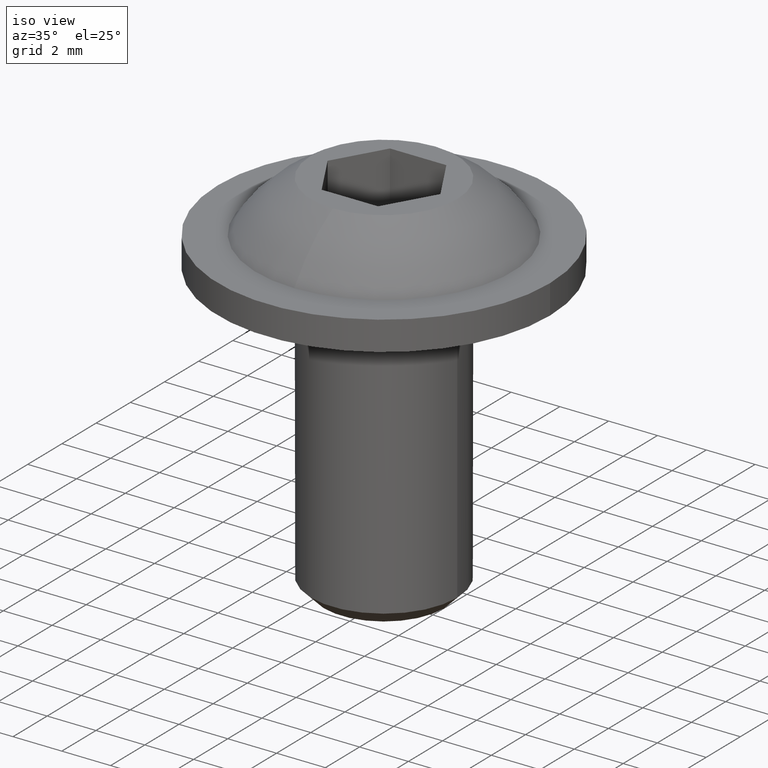
[diagram: clean part render]
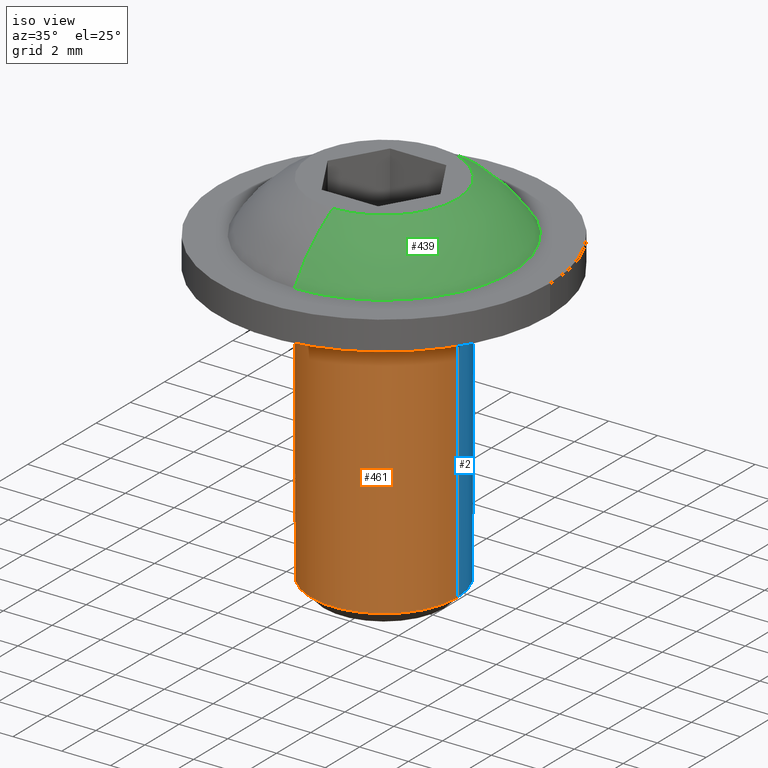
[diagram: same view with three faces highlighted in distinct colors, each labeled with its STEP entity id]
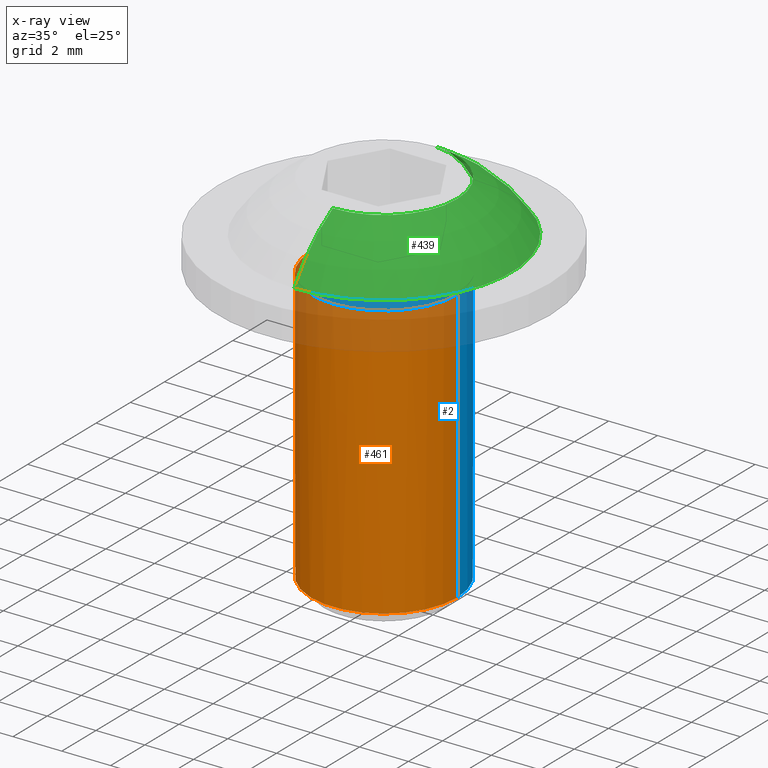
[diagram: x-ray of the same camera — body ghosted, the three highlighted faces saturated]
A machine part, iso view with three faces highlighted in distinct colors.
The next image is the same camera in x-ray (body ghosted, the three faces saturated) — at least one of them is partly hidden behind the body in this view.
Their STEP definitions:

[orange] entity #461 — the highlighted cylindrical surface (partial cylindrical patch) has radius 3 mm, axis along (-0, -0, -1).
#4 = ORIENTED_EDGE ( 'NONE', *, *, #588, .T. ) ;
#16 = AXIS2_PLACEMENT_3D ( 'NONE', #674, #540, #85 ) ;
#41 = CARTESIAN_POINT ( 'NONE',  ( -2.544353616684700200E-015, -2.544353616684700200E-015, -11.45875000000000000 ) ) ;
#69 = CARTESIAN_POINT ( 'NONE',  ( -3.000000000000001300, -1.299932383957980000E-015, -5.854374999999999200 ) ) ;
#74 = DIRECTION ( 'NONE',  ( -2.220446049250310100E-016, -2.220446049250310100E-016, -1.000000000000000000 ) ) ;
#78 = FACE_OUTER_BOUND ( 'NONE', #93, .T. ) ;
#85 = DIRECTION ( 'NONE',  ( -1.000000000000000000, 0.0000000000000000000, 2.891205793294678300E-016 ) ) ;
#93 = EDGE_LOOP ( 'NONE', ( #163, #681, #361, #438, #4 ) ) ;
#151 = DIRECTION ( 'NONE',  ( -1.000000000000000000, 0.0000000000000000000, 2.168404344971008900E-016 ) ) ;
#163 = ORIENTED_EDGE ( 'NONE', *, *, #721, .F. ) ;
#211 = LINE ( 'NONE', #69, #598 ) ;
#242 = CARTESIAN_POINT ( 'NONE',  ( -5.551115123125941700E-017, -5.551115123125941700E-017, -0.2500000000000002200 ) ) ;
#247 = VERTEX_POINT ( 'NONE', #389 ) ;
#250 = DIRECTION ( 'NONE',  ( -2.220446049250310100E-016, -2.220446049250310100E-016, -1.000000000000000000 ) ) ;
#268 = AXIS2_PLACEMENT_3D ( 'NONE', #354, #822, #151 ) ;
#307 = LINE ( 'NONE', #852, #507 ) ;
#332 = EDGE_CURVE ( 'NONE', #539, #672, #362, .T. ) ;
#334 = AXIS2_PLACEMENT_3D ( 'NONE', #41, #769, #630 ) ;
#335 = VERTEX_POINT ( 'NONE', #381 ) ;
#354 = CARTESIAN_POINT ( 'NONE',  ( -5.551115123125941700E-017, -5.551115123125941700E-017, -0.2500000000000002200 ) ) ;
#361 = ORIENTED_EDGE ( 'NONE', *, *, #332, .T. ) ;
#362 = CIRCLE ( 'NONE', #749, 3.000000000000000000 ) ;
#381 = CARTESIAN_POINT ( 'NONE',  ( -3.000000000017062800, -2.176959576943944400E-015, -11.45875000000000000 ) ) ;
#385 = CARTESIAN_POINT ( 'NONE',  ( 3.000000000000000000, 3.118828885129464800E-016, -0.2500000000000011100 ) ) ;
#389 = CARTESIAN_POINT ( 'NONE',  ( 3.000000000017055700, -2.544353616690240400E-015, -11.45875000000000000 ) ) ;
#423 = CYLINDRICAL_SURFACE ( 'NONE', #16, 3.000000000000000000 ) ;
#438 = ORIENTED_EDGE ( 'NONE', *, *, #782, .T. ) ;
#452 = DIRECTION ( 'NONE',  ( -2.220446049250310100E-016, -2.220446049250310100E-016, -1.000000000000000000 ) ) ;
#461 = ADVANCED_FACE ( 'NONE', ( #78 ), #423, .T. ) ;
#496 = CARTESIAN_POINT ( 'NONE',  ( -2.775557561562906100E-017, -3.000000000000000000, -0.2499999999999995800 ) ) ;
#507 = VECTOR ( 'NONE', #452, 1000.000000000000000 ) ;
#539 = VERTEX_POINT ( 'NONE', #496 ) ;
#540 = DIRECTION ( 'NONE',  ( -2.220446049250310100E-016, -2.220446049250310100E-016, -1.000000000000000000 ) ) ;
#588 = EDGE_CURVE ( 'NONE', #335, #247, #665, .T. ) ;
#598 = VECTOR ( 'NONE', #74, 1000.000000000000000 ) ;
#630 = DIRECTION ( 'NONE',  ( -1.000000000000000000, 0.0000000000000000000, 0.0000000000000000000 ) ) ;
#665 = CIRCLE ( 'NONE', #334, 3.000000000000000000 ) ;
#672 = VERTEX_POINT ( 'NONE', #703 ) ;
#674 = CARTESIAN_POINT ( 'NONE',  ( -1.299932383957980000E-015, -1.299932383957980000E-015, -5.854375000000000100 ) ) ;
#681 = ORIENTED_EDGE ( 'NONE', *, *, #823, .T. ) ;
#703 = CARTESIAN_POINT ( 'NONE',  ( -3.000000000000000000, -5.551115123125941700E-017, -0.2499999999999993600 ) ) ;
#704 = VERTEX_POINT ( 'NONE', #385 ) ;
#717 = DIRECTION ( 'NONE',  ( -1.000000000000000000, 0.0000000000000000000, 2.168404344971008900E-016 ) ) ;
#721 = EDGE_CURVE ( 'NONE', #704, #247, #307, .T. ) ;
#749 = AXIS2_PLACEMENT_3D ( 'NONE', #242, #250, #717 ) ;
#769 = DIRECTION ( 'NONE',  ( 2.220446049250310100E-016, 2.220446049250310100E-016, 1.000000000000000000 ) ) ;
#770 = CIRCLE ( 'NONE', #268, 3.000000000000000000 ) ;
#782 = EDGE_CURVE ( 'NONE', #672, #335, #211, .T. ) ;
#822 = DIRECTION ( 'NONE',  ( -2.220446049250310100E-016, -2.220446049250310100E-016, -1.000000000000000000 ) ) ;
#823 = EDGE_CURVE ( 'NONE', #704, #539, #770, .T. ) ;
#852 = CARTESIAN_POINT ( 'NONE',  ( 2.999999999999998700, -9.325383442137741500E-016, -5.854375000000001000 ) ) ;

[blue] entity #2 — the highlighted cylindrical surface (partial cylindrical patch) has radius 3 mm, axis along (-0, -0, -1).
#2 = ADVANCED_FACE ( 'NONE', ( #290 ), #719, .T. ) ;
#69 = CARTESIAN_POINT ( 'NONE',  ( -3.000000000000001300, -1.299932383957980000E-015, -5.854374999999999200 ) ) ;
#74 = DIRECTION ( 'NONE',  ( -2.220446049250310100E-016, -2.220446049250310100E-016, -1.000000000000000000 ) ) ;
#86 = DIRECTION ( 'NONE',  ( -2.220446049250310100E-016, -2.220446049250310100E-016, -1.000000000000000000 ) ) ;
#117 = CARTESIAN_POINT ( 'NONE',  ( -5.551115123125941700E-017, -5.551115123125941700E-017, -0.2500000000000002200 ) ) ;
#122 = ORIENTED_EDGE ( 'NONE', *, *, #711, .T. ) ;
#123 = DIRECTION ( 'NONE',  ( -2.220446049250310100E-016, -2.220446049250310100E-016, -1.000000000000000000 ) ) ;
#140 = AXIS2_PLACEMENT_3D ( 'NONE', #733, #727, #527 ) ;
#148 = CIRCLE ( 'NONE', #140, 3.000000000000000000 ) ;
#176 = AXIS2_PLACEMENT_3D ( 'NONE', #723, #123, #587 ) ;
#211 = LINE ( 'NONE', #69, #598 ) ;
#223 = EDGE_LOOP ( 'NONE', ( #122, #382, #631, #337, #642 ) ) ;
#247 = VERTEX_POINT ( 'NONE', #389 ) ;
#289 = AXIS2_PLACEMENT_3D ( 'NONE', #479, #86, #821 ) ;
#290 = FACE_OUTER_BOUND ( 'NONE', #223, .T. ) ;
#307 = LINE ( 'NONE', #852, #507 ) ;
#314 = EDGE_CURVE ( 'NONE', #654, #704, #772, .T. ) ;
#335 = VERTEX_POINT ( 'NONE', #381 ) ;
#337 = ORIENTED_EDGE ( 'NONE', *, *, #753, .T. ) ;
#381 = CARTESIAN_POINT ( 'NONE',  ( -3.000000000017062800, -2.176959576943944400E-015, -11.45875000000000000 ) ) ;
#382 = ORIENTED_EDGE ( 'NONE', *, *, #314, .T. ) ;
#385 = CARTESIAN_POINT ( 'NONE',  ( 3.000000000000000000, 3.118828885129464800E-016, -0.2500000000000011100 ) ) ;
#389 = CARTESIAN_POINT ( 'NONE',  ( 3.000000000017055700, -2.544353616690240400E-015, -11.45875000000000000 ) ) ;
#441 = CARTESIAN_POINT ( 'NONE',  ( -4.104577003491771400E-016, 3.000000000000000000, -0.2500000000000008900 ) ) ;
#452 = DIRECTION ( 'NONE',  ( -2.220446049250310100E-016, -2.220446049250310100E-016, -1.000000000000000000 ) ) ;
#479 = CARTESIAN_POINT ( 'NONE',  ( -1.299932383957980000E-015, -1.299932383957980000E-015, -5.854375000000000100 ) ) ;
#507 = VECTOR ( 'NONE', #452, 1000.000000000000000 ) ;
#527 = DIRECTION ( 'NONE',  ( -1.000000000000000000, 0.0000000000000000000, 0.0000000000000000000 ) ) ;
#538 = AXIS2_PLACEMENT_3D ( 'NONE', #117, #579, #786 ) ;
#579 = DIRECTION ( 'NONE',  ( -2.220446049250310100E-016, -2.220446049250310100E-016, -1.000000000000000000 ) ) ;
#587 = DIRECTION ( 'NONE',  ( -1.000000000000000000, 0.0000000000000000000, 2.168404344971008900E-016 ) ) ;
#598 = VECTOR ( 'NONE', #74, 1000.000000000000000 ) ;
#631 = ORIENTED_EDGE ( 'NONE', *, *, #721, .T. ) ;
#642 = ORIENTED_EDGE ( 'NONE', *, *, #782, .F. ) ;
#643 = CIRCLE ( 'NONE', #176, 3.000000000000000000 ) ;
#654 = VERTEX_POINT ( 'NONE', #441 ) ;
#672 = VERTEX_POINT ( 'NONE', #703 ) ;
#703 = CARTESIAN_POINT ( 'NONE',  ( -3.000000000000000000, -5.551115123125941700E-017, -0.2499999999999993600 ) ) ;
#704 = VERTEX_POINT ( 'NONE', #385 ) ;
#711 = EDGE_CURVE ( 'NONE', #672, #654, #643, .T. ) ;
#719 = CYLINDRICAL_SURFACE ( 'NONE', #289, 3.000000000000000000 ) ;
#721 = EDGE_CURVE ( 'NONE', #704, #247, #307, .T. ) ;
#723 = CARTESIAN_POINT ( 'NONE',  ( -5.551115123125941700E-017, -5.551115123125941700E-017, -0.2500000000000002200 ) ) ;
#727 = DIRECTION ( 'NONE',  ( 2.220446049250310100E-016, 2.220446049250310100E-016, 1.000000000000000000 ) ) ;
#733 = CARTESIAN_POINT ( 'NONE',  ( -2.544353616684700200E-015, -2.544353616684700200E-015, -11.45875000000000000 ) ) ;
#753 = EDGE_CURVE ( 'NONE', #247, #335, #148, .T. ) ;
#772 = CIRCLE ( 'NONE', #538, 3.000000000000000000 ) ;
#782 = EDGE_CURVE ( 'NONE', #672, #335, #211, .T. ) ;
#786 = DIRECTION ( 'NONE',  ( -1.000000000000000000, 0.0000000000000000000, 2.168404344971008900E-016 ) ) ;
#821 = DIRECTION ( 'NONE',  ( -1.000000000000000000, 0.0000000000000000000, 2.891205793294678300E-016 ) ) ;
#852 = CARTESIAN_POINT ( 'NONE',  ( 2.999999999999998700, -9.325383442137741500E-016, -5.854375000000001000 ) ) ;

[green] entity #439 — the highlighted toroidal blend (fillet) surface has major radius 0.0622 mm and minor (blend) radius 6.15 mm.
#12 = CARTESIAN_POINT ( 'NONE',  ( 2.999999999938654800, 9.267969965380100800E-011, 3.300000000033706600 ) ) ;
#13 = TOROIDAL_SURFACE ( 'NONE', #44, 0.06223310761322799200, 6.150000000003363000 ) ;
#15 = CIRCLE ( 'NONE', #689, 2.999999999900905000 ) ;
#17 = CARTESIAN_POINT ( 'NONE',  ( -1.493154693746563500E-011, -5.249999999927985600, 1.200000000112147400 ) ) ;
#29 = EDGE_CURVE ( 'NONE', #472, #196, #15, .T. ) ;
#44 = AXIS2_PLACEMENT_3D ( 'NONE', #796, #202, #82 ) ;
#48 = ORIENTED_EDGE ( 'NONE', *, *, #646, .F. ) ;
#54 = CARTESIAN_POINT ( 'NONE',  ( 0.1955499360697035300, -3.000000000002694700, 3.299999999999999800 ) ) ;
#63 = CARTESIAN_POINT ( 'NONE',  ( -2.893871123635372000E-013, 0.06223310761449050300, -2.102964527557662100 ) ) ;
#64 = CARTESIAN_POINT ( 'NONE',  ( -2.893794910059332700E-013, -0.06223310761196548100, -2.102964527555556200 ) ) ;
#71 = FACE_OUTER_BOUND ( 'NONE', #582, .T. ) ;
#79 = EDGE_CURVE ( 'NONE', #580, #399, #201, .T. ) ;
#82 = DIRECTION ( 'NONE',  ( 6.312219209591701400E-029, 1.000000000000000000, -1.691991454407798400E-011 ) ) ;
#84 = VERTEX_POINT ( 'NONE', #368 ) ;
#111 = CARTESIAN_POINT ( 'NONE',  ( 0.3941608793149307700, -2.980447606564370100, 3.300000000000001200 ) ) ;
#118 = CARTESIAN_POINT ( 'NONE',  ( 1.829057877067161300, -2.385942795759868200, 3.300000000000001200 ) ) ;
#152 = EDGE_CURVE ( 'NONE', #84, #399, #809, .T. ) ;
#167 = DIRECTION ( 'NONE',  ( -4.433230403294821800E-012, 1.691991454407798400E-011, 1.000000000000000000 ) ) ;
#175 = CARTESIAN_POINT ( 'NONE',  ( 3.000000000006811000, -0.1980907184211426200, 3.300000000000001600 ) ) ;
#178 = CARTESIAN_POINT ( 'NONE',  ( 1.504132556393570400, -2.603029195974748200, 3.300000000000001200 ) ) ;
#191 = ORIENTED_EDGE ( 'NONE', *, *, #726, .F. ) ;
#196 = VERTEX_POINT ( 'NONE', #379 ) ;
#201 = CIRCLE ( 'NONE', #795, 5.249999999985135400 ) ;
#202 = DIRECTION ( 'NONE',  ( 4.433230403294821800E-012, -1.691991454407798400E-011, -1.000000000000000000 ) ) ;
#236 = ORIENTED_EDGE ( 'NONE', *, *, #29, .F. ) ;
#240 = B_SPLINE_CURVE_WITH_KNOTS ( 'NONE', 3,
 ( #773, #54, #111, #375, #249, #312, #178, #118, #716, #590, #460, #648, #850, #584, #308, #781, #175, #254 ),
 .UNSPECIFIED., .F., .F.,
 ( 4, 2, 2, 2, 2, 2, 2, 2, 4 ),
 ( 0.004690747558851300600, 0.005276584894768994100, 0.005862422230686687600, 0.006448259566604380200, 0.007034096902522073700, 0.007619934238439767100, 0.008205771574357459800, 0.008791608910275153200, 0.009377446246192846700 ),
 .UNSPECIFIED. ) ;
#246 = DIRECTION ( 'NONE',  ( 4.433230403294819400E-012, 0.0000000000000000000, -1.000000000000000000 ) ) ;
#249 = CARTESIAN_POINT ( 'NONE',  ( 0.9655615807419071200, -2.847151163701540500, 3.300000000000001200 ) ) ;
#254 = CARTESIAN_POINT ( 'NONE',  ( 2.999999999938654800, 9.267969965380100800E-011, 3.300000000033706600 ) ) ;
#304 = CARTESIAN_POINT ( 'NONE',  ( -1.493218987703518600E-011, 5.250000000042283500, 1.199999999934488600 ) ) ;
#308 = CARTESIAN_POINT ( 'NONE',  ( 2.903327572995810300, -0.7804148245162515500, 3.300000000000000300 ) ) ;
#310 = DIRECTION ( 'NONE',  ( 1.000000000000000000, 1.224647549246149000E-016, 4.433230403294819400E-012 ) ) ;
#312 = CARTESIAN_POINT ( 'NONE',  ( 1.328543561221356800, -2.696952154026665700, 3.300000000000001200 ) ) ;
#357 = CARTESIAN_POINT ( 'NONE',  ( -2.424197372409084100E-011, 9.268021389219078900E-011, 3.300000000054113900 ) ) ;
#368 = CARTESIAN_POINT ( 'NONE',  ( -2.424160632991540900E-011, -3.000000000001101300, 3.300000000000000700 ) ) ;
#375 = CARTESIAN_POINT ( 'NONE',  ( 0.7786726161702878200, -2.903807791690796100, 3.300000000000000700 ) ) ;
#378 = AXIS2_PLACEMENT_3D ( 'NONE', #64, #310, #246 ) ;
#379 = CARTESIAN_POINT ( 'NONE',  ( -1.958708180056681200E-011, 2.999999999993585100, 3.300000000003354000 ) ) ;
#383 = CIRCLE ( 'NONE', #787, 6.150000000003363000 ) ;
#399 = VERTEX_POINT ( 'NONE', #17 ) ;
#439 = ADVANCED_FACE ( 'NONE', ( #71 ), #13, .T. ) ;
#460 = CARTESIAN_POINT ( 'NONE',  ( 2.384827564948649200, -1.830505222730657700, 3.300000000000000700 ) ) ;
#472 = VERTEX_POINT ( 'NONE', #12 ) ;
#492 = CARTESIAN_POINT ( 'NONE',  ( -1.493218987703518900E-011, 5.714839334910594300E-011, 1.200000000023317700 ) ) ;
#516 = ORIENTED_EDGE ( 'NONE', *, *, #152, .T. ) ;
#519 = DIRECTION ( 'NONE',  ( -1.000000000000000000, -7.500987957795676300E-023, -4.433230403294821800E-012 ) ) ;
#580 = VERTEX_POINT ( 'NONE', #304 ) ;
#582 = EDGE_LOOP ( 'NONE', ( #48, #516, #743, #191, #236 ) ) ;
#584 = CARTESIAN_POINT ( 'NONE',  ( 2.846575429483872500, -0.9673097520818723100, 3.300000000000000300 ) ) ;
#590 = CARTESIAN_POINT ( 'NONE',  ( 2.260481113448773400, -1.982268710222570900, 3.300000000000001200 ) ) ;
#624 = DIRECTION ( 'NONE',  ( 0.0000000000000000000, 1.000000000000000000, -1.691991454356702500E-011 ) ) ;
#632 = DIRECTION ( 'NONE',  ( 8.881784197000460500E-016, 1.000000000000000000, -1.691991454407800900E-011 ) ) ;
#637 = DIRECTION ( 'NONE',  ( 4.433230403294821800E-012, -1.691991454407798400E-011, -1.000000000000000000 ) ) ;
#646 = EDGE_CURVE ( 'NONE', #84, #472, #240, .T. ) ;
#648 = CARTESIAN_POINT ( 'NONE',  ( 2.602050080358131500, -1.505817805808861200, 3.300000000000000700 ) ) ;
#689 = AXIS2_PLACEMENT_3D ( 'NONE', #357, #167, #632 ) ;
#716 = CARTESIAN_POINT ( 'NONE',  ( 1.980499903958238300, -2.262030997623093700, 3.300000000000001200 ) ) ;
#726 = EDGE_CURVE ( 'NONE', #196, #580, #383, .T. ) ;
#743 = ORIENTED_EDGE ( 'NONE', *, *, #79, .F. ) ;
#773 = CARTESIAN_POINT ( 'NONE',  ( -2.424160632991540900E-011, -3.000000000001101300, 3.300000000000000700 ) ) ;
#781 = CARTESIAN_POINT ( 'NONE',  ( 2.980149586908848100, -0.3963164569999714200, 3.300000000000000700 ) ) ;
#787 = AXIS2_PLACEMENT_3D ( 'NONE', #63, #519, #863 ) ;
#795 = AXIS2_PLACEMENT_3D ( 'NONE', #492, #637, #624 ) ;
#796 = CARTESIAN_POINT ( 'NONE',  ( -2.893871123635372000E-013, 1.262515800332677800E-012, -2.102964527556609100 ) ) ;
#809 = CIRCLE ( 'NONE', #378, 6.150000000003362100 ) ;
#850 = CARTESIAN_POINT ( 'NONE',  ( 2.695926665909493400, -1.330661205661505300, 3.300000000000000700 ) ) ;
#863 = DIRECTION ( 'NONE',  ( -4.433230403294821800E-012, 0.0000000000000000000, 1.000000000000000000 ) ) ;